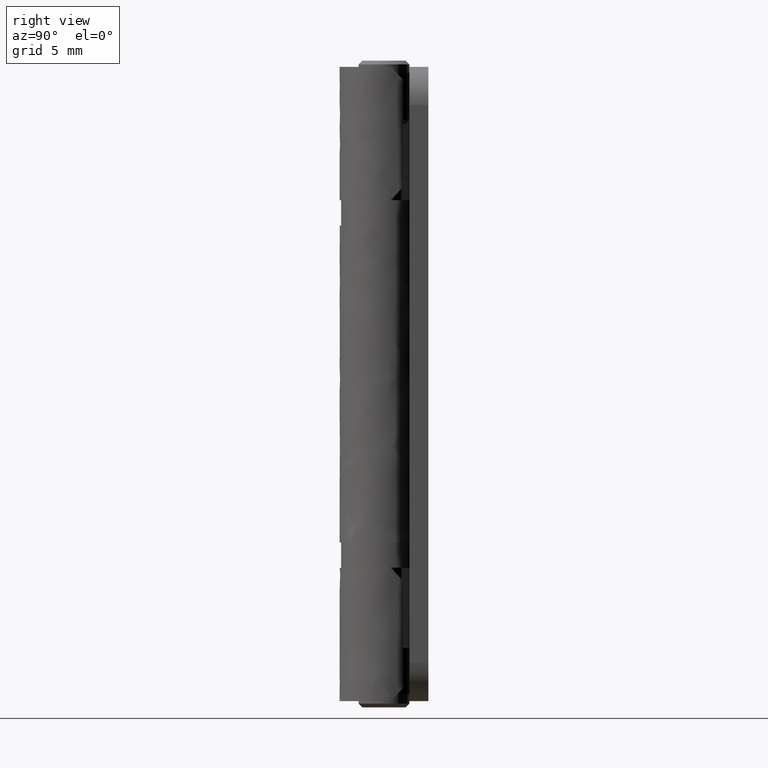
[diagram: clean part render]
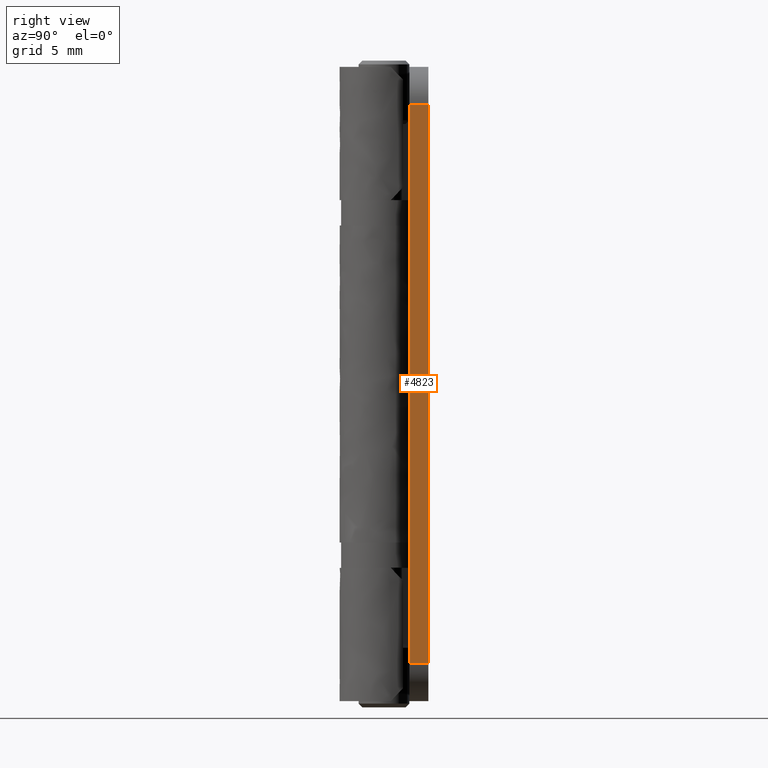
[diagram: same view with one face highlighted and labeled with its STEP entity id]
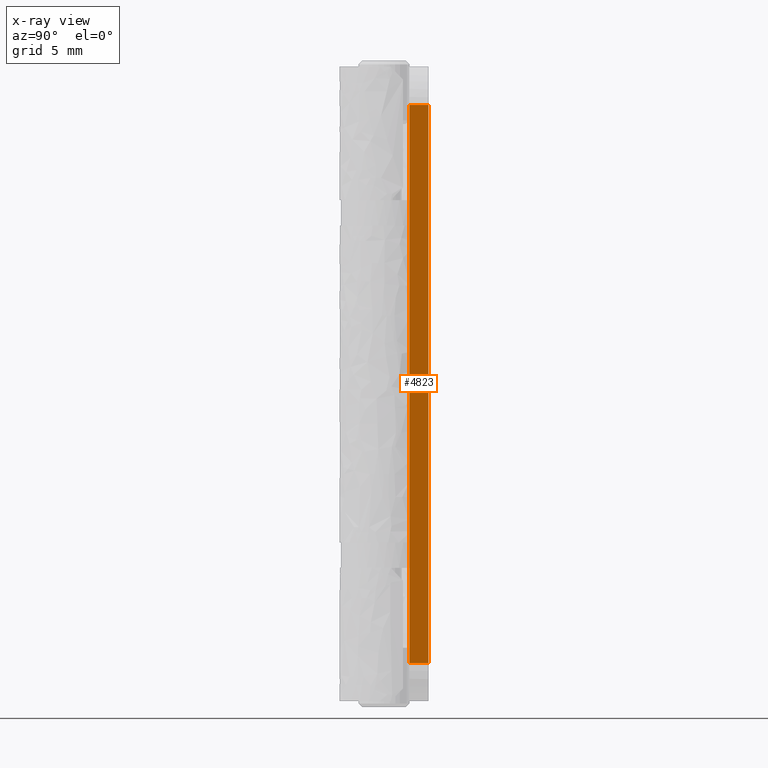
[diagram: x-ray of the same camera — body ghosted, the highlighted face saturated]
A machine part, right view. The second image highlights one B-rep face of the part: STEP entity #4823.
The next image is the same camera in x-ray: the body ghosted, the highlighted face saturated — about 0% of this face is hidden behind the body in this view.
In plain terms, the highlighted face is a freeform B-spline surface patch.
Its self-contained STEP definition (entity closure, byte-faithful):
#3578=CARTESIAN_POINT('',(12.999999999999099,2.000000000000115,3.0));
#3579=VERTEX_POINT('',#3578);
#3593=CARTESIAN_POINT('',(12.999999999999099,2.000000000000115,47.0));
#3594=VERTEX_POINT('',#3593);
#3595=CARTESIAN_POINT('',(12.999999999999099,2.000000000000115,47.0));
#3596=CARTESIAN_POINT('',(12.999999999999099,2.000000000000115,3.0));
#3597=QUASI_UNIFORM_CURVE('',1,(#3595,#3596),.UNSPECIFIED.,.F.,.U.);
#3598=EDGE_CURVE('',#3594,#3579,#3597,.T.);
#4614=CARTESIAN_POINT('',(12.999999999999099,3.500000000000115,47.0));
#4615=VERTEX_POINT('',#4614);
#4635=CARTESIAN_POINT('',(12.999999999999099,3.500000000000115,47.0));
#4636=CARTESIAN_POINT('',(12.999999999999099,2.000000000000115,47.0));
#4637=QUASI_UNIFORM_CURVE('',1,(#4635,#4636),.UNSPECIFIED.,.F.,.U.);
#4638=EDGE_CURVE('',#4615,#3594,#4637,.T.);
#4657=CARTESIAN_POINT('',(12.999999999999099,3.500000000000115,3.0));
#4658=VERTEX_POINT('',#4657);
#4674=CARTESIAN_POINT('',(12.999999999999099,2.000000000000115,3.0));
#4675=CARTESIAN_POINT('',(12.999999999999099,3.500000000000115,3.0));
#4676=QUASI_UNIFORM_CURVE('',1,(#4674,#4675),.UNSPECIFIED.,.F.,.U.);
#4677=EDGE_CURVE('',#3579,#4658,#4676,.T.);
#4808=CARTESIAN_POINT('',(12.999999999999099,1.925075002907406,49.197799914719468));
#4809=CARTESIAN_POINT('',(12.999999999999099,1.925075002907406,0.802198905108573));
#4810=CARTESIAN_POINT('',(12.999999999999099,3.574925037325960,49.197799914719468));
#4811=CARTESIAN_POINT('',(12.999999999999099,3.574925037325960,0.802198905108573));
#4812=B_SPLINE_SURFACE_WITH_KNOTS('',1,1,((#4808,#4810),(#4809,#4811)),.UNSPECIFIED.,.F.,.F.,.U.,(2,2),(2,2),(0.0,48.395601009610893),(0.041708334948495,0.958291687403247),.UNSPECIFIED.);
#4813=ORIENTED_EDGE('',*,*,#3598,.T.);
#4814=ORIENTED_EDGE('',*,*,#4677,.T.);
#4815=CARTESIAN_POINT('',(12.999999999999099,3.500000000000115,47.0));
#4816=CARTESIAN_POINT('',(12.999999999999099,3.500000000000115,3.0));
#4817=QUASI_UNIFORM_CURVE('',1,(#4815,#4816),.UNSPECIFIED.,.F.,.U.);
#4818=EDGE_CURVE('',#4615,#4658,#4817,.T.);
#4819=ORIENTED_EDGE('',*,*,#4818,.F.);
#4820=ORIENTED_EDGE('',*,*,#4638,.T.);
#4821=EDGE_LOOP('',(#4813,#4814,#4819,#4820));
#4822=FACE_OUTER_BOUND('',#4821,.T.);
#4823=ADVANCED_FACE('',(#4822),#4812,.T.);